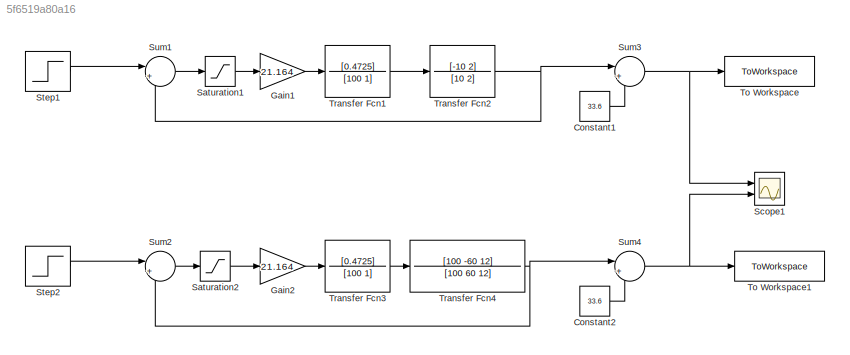
MODEL slx_5f6519a80a16
KIND model
CONFIG AbsTol = auto
CONFIG EnableMultiTasking = off
CONFIG FixedStep = auto
CONFIG MaxStep = auto
CONFIG MinStep = auto
CONFIG RelTol = 1e-3
CONFIG SampleTimeConstraint = Unconstrained
CONFIG Solver = VariableStepAuto
CONFIG SolverName = VariableStepAuto
CONFIG StartTime = 0.0
CONFIG StopTime = 600
BLOCK [Constant] Constant1
  Value = 33.6
BLOCK [Constant] Constant2
  Value = 33.6
BLOCK [Gain] Gain1
  Gain = 21.164
BLOCK [Gain] Gain2
  Gain = 21.164
BLOCK [Saturate] Saturation1
  LowerLimit = 0
  UpperLimit = 24
BLOCK [Saturate] Saturation2
  LowerLimit = 0
  UpperLimit = 24
BLOCK [Scope] Scope1
  Floating = off
  NumInputPorts = 2
  Ports = [2]
  ScopeSpecificationString = Simulink.scopes.TimeScopeBlockCfg('CurrentConfiguration', extmgr.ConfigurationSet(extmgr.Configuration('Core','General UI',true),extmgr.Configuration('Core','Source UI',true),extmgr.Configuration('Sources','WiredSimulink',true,'DataLoggingVariableName','ScopeData1'),extmgr.Configuration('Visuals','Time Domain',true,'SerializedDisplays',{struct('MinYLimReal','31.6934','MaxYLimReal','90.49446','YLab...<+1420ch>
BLOCK [Step] Step1
  After = 11.4
  SampleTime = 0
BLOCK [Step] Step2
  After = 11.4
  SampleTime = 0
BLOCK [Sum] Sum1
  Inputs = |+-
  Ports = [2, 1]
BLOCK [Sum] Sum2
  Inputs = |+-
  Ports = [2, 1]
BLOCK [Sum] Sum3
  Inputs = |++
  Ports = [2, 1]
BLOCK [Sum] Sum4
  Inputs = |++
  Ports = [2, 1]
BLOCK [ToWorkspace] To Workspace
  FixptAsFi = on
  MaxDataPoints = inf
  Ports = [1]
  SampleTime = -1
  SaveFormat = Timeseries
  VariableName = Pade1
BLOCK [ToWorkspace] To Workspace1
  FixptAsFi = on
  MaxDataPoints = inf
  Ports = [1]
  SampleTime = -1
  SaveFormat = Timeseries
  VariableName = Pade2
BLOCK [TransferFcn] Transfer Fcn1
  Denominator = [100 1]
  Numerator = [0.4725]
BLOCK [TransferFcn] Transfer Fcn2
  Denominator = [10 2]
  Numerator = [-10 2]
BLOCK [TransferFcn] Transfer Fcn3
  Denominator = [100 1]
  Numerator = [0.4725]
BLOCK [TransferFcn] Transfer Fcn4
  Denominator = [100 60 12]
  Numerator = [100 -60 12]
LINE Constant1:1 -> Sum3:2
LINE Constant2:1 -> Sum4:2
LINE Gain1:1 -> Transfer Fcn1:1
LINE Gain2:1 -> Transfer Fcn3:1
LINE Saturation1:1 -> Gain1:1
LINE Saturation2:1 -> Gain2:1
LINE Step1:1 -> Sum1:1
LINE Step2:1 -> Sum2:1
LINE Sum1:1 -> Saturation1:1
LINE Sum2:1 -> Saturation2:1
NET Sum3:1 -> Scope1:1, To Workspace:1
NET Sum4:1 -> Scope1:2, To Workspace1:1
LINE Transfer Fcn1:1 -> Transfer Fcn2:1
NET Transfer Fcn2:1 -> Sum1:2, Sum3:1
LINE Transfer Fcn3:1 -> Transfer Fcn4:1
NET Transfer Fcn4:1 -> Sum2:2, Sum4:1
note: NET lines group one-source signal fan-out (src -> all destinations, sorted); 1:1 wires keep LINE
